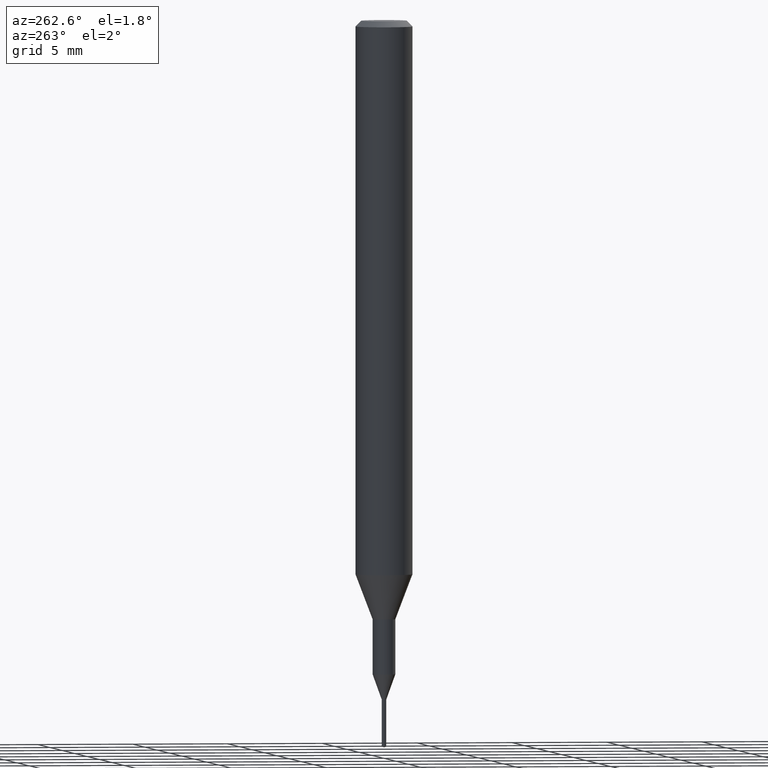
[diagram: clean part render]
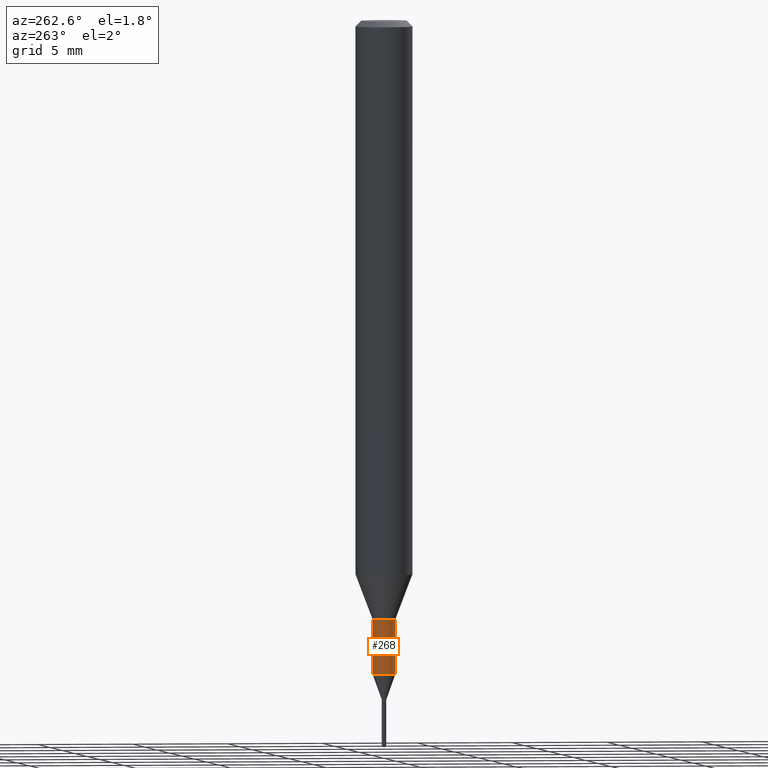
[diagram: same view with one face highlighted and labeled with its STEP entity id]
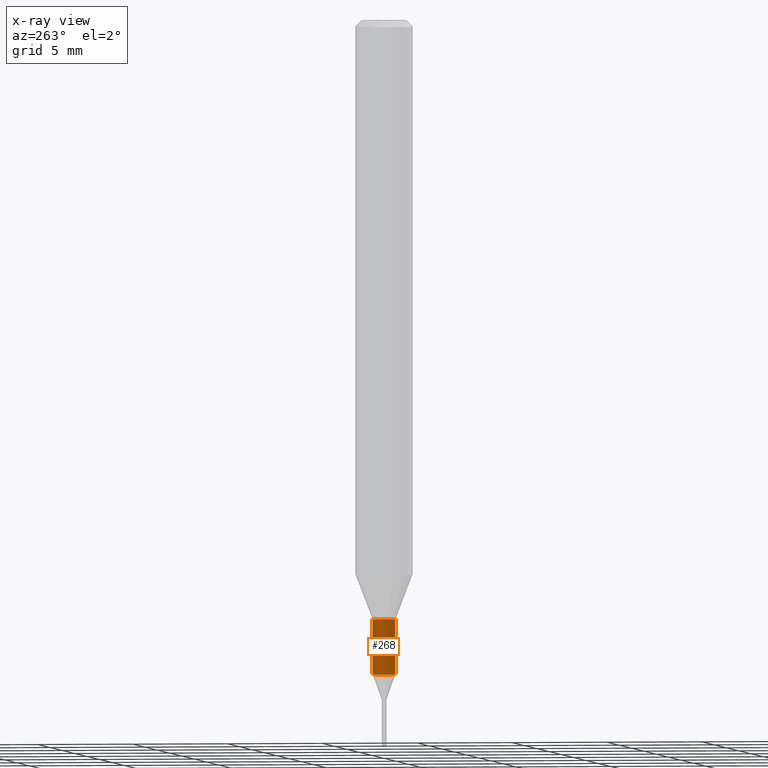
[diagram: x-ray of the same camera — body ghosted, the highlighted face saturated]
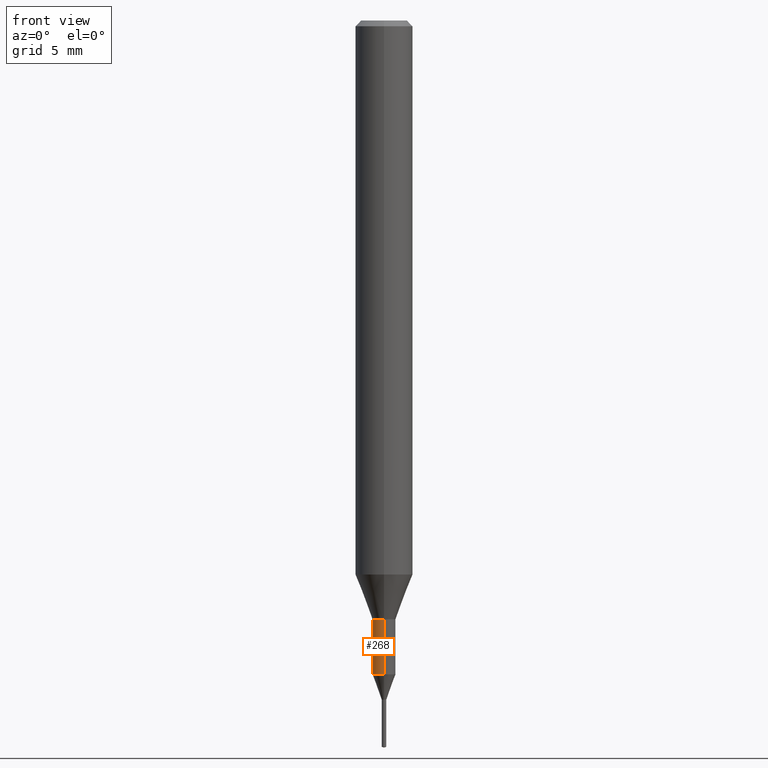
[diagram: same view with one face highlighted and labeled with its STEP entity id]
A machine part, auxiliary view. The second image highlights one B-rep face of the part: STEP entity #268.
The next image is the same camera in x-ray: the body ghosted, the highlighted face saturated — about 0% of this face is hidden behind the body in this view.
A second angle (front view) of the same face is appended — the face is thin or edge-on in the first view.
In plain terms, the highlighted cylindrical surface (edge-blend (fillet) strip) has radius 0.5999 mm, axis along (-0, -0, 1).
Its self-contained STEP definition (entity closure, byte-faithful):
#128=VERTEX_POINT('',#309);
#150=EDGE_CURVE('',#184,#190,#336,.T.);
#176=VERTEX_POINT('',#366);
#184=VERTEX_POINT('',#374);
#190=VERTEX_POINT('',#380);
#200=EDGE_CURVE('',#128,#184,#391,.T.);
#208=EDGE_CURVE('',#190,#176,#400,.T.);
#236=EDGE_CURVE('',#128,#176,#430,.T.);
#268=ADVANCED_FACE('',(#465),#466,.T.);
#309=CARTESIAN_POINT('',(7.34702581975735E-017,-0.59995,-34.181));
#336=CIRCLE('',#531,0.59995);
#366=CARTESIAN_POINT('',(0.0,0.59995,-34.181));
#374=CARTESIAN_POINT('',(7.34702581975735E-017,-0.59995,-31.3));
#380=CARTESIAN_POINT('',(0.0,0.59995,-31.3));
#391=LINE('',#601,#602);
#400=LINE('',#616,#617);
#430=CIRCLE('',#661,0.59995);
#465=FACE_OUTER_BOUND('',#705,.T.);
#466=CYLINDRICAL_SURFACE('',#706,0.59995);
#531=AXIS2_PLACEMENT_3D('',#784,#785,#786);
#601=CARTESIAN_POINT('',(7.34702581975735E-017,-0.59995,-32.7405));
#602=VECTOR('',#851,1.0);
#616=CARTESIAN_POINT('',(-7.34702581975735E-017,0.59995,-32.7405));
#617=VECTOR('',#862,1.0);
#661=AXIS2_PLACEMENT_3D('',#896,#897,#898);
#705=EDGE_LOOP('',(#931,#932,#933,#934));
#706=AXIS2_PLACEMENT_3D('',#935,#936,#937);
#784=CARTESIAN_POINT('',(0.0,0.0,-31.3));
#785=DIRECTION('',(0.0,0.0,-1.0));
#786=DIRECTION('',(0.0,1.0,0.0));
#851=DIRECTION('',(-0.0,-0.0,1.0));
#862=DIRECTION('',(0.0,0.0,-1.0));
#896=CARTESIAN_POINT('',(0.0,0.0,-34.181));
#897=DIRECTION('',(0.0,0.0,-1.0));
#898=DIRECTION('',(0.0,1.0,0.0));
#931=ORIENTED_EDGE('',*,*,#208,.T.);
#932=ORIENTED_EDGE('',*,*,#236,.F.);
#933=ORIENTED_EDGE('',*,*,#200,.T.);
#934=ORIENTED_EDGE('',*,*,#150,.T.);
#935=CARTESIAN_POINT('',(0.0,0.0,-32.7405));
#936=DIRECTION('',(-0.0,-0.0,1.0));
#937=DIRECTION('',(0.0,1.0,0.0));